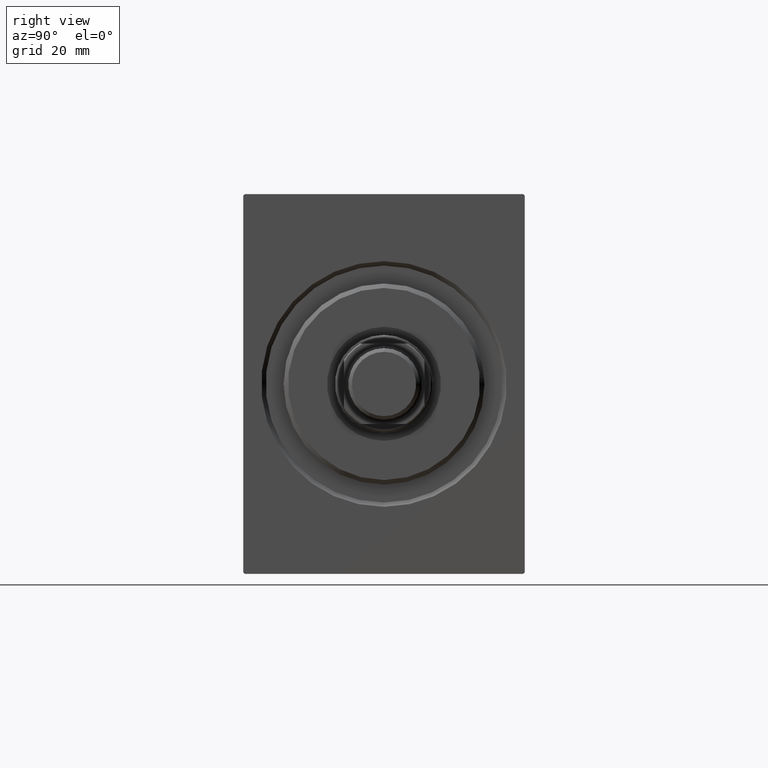
[diagram: clean part render]
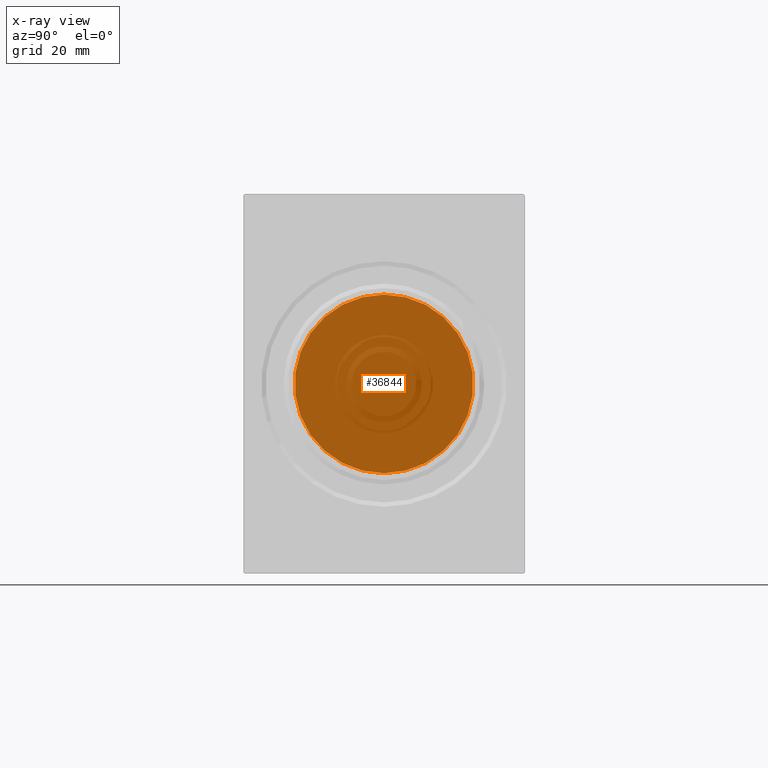
[diagram: x-ray — body ghosted, one internal face saturated and labeled with its STEP entity id]
A machine part, right view, then the same camera in x-ray: the body is ghosted and one INTERNAL B-rep face — a face not visible from any outside direction — is saturated and labeled: STEP entity #36844.
In plain terms, the highlighted planar face has unit normal (1, 0, -0).
Its self-contained STEP definition (entity closure, byte-faithful):
#1871 = AXIS2_PLACEMENT_3D ( 'NONE', #20228, #37117, #7067 ) ;
#4005 = DIRECTION ( 'NONE',  ( -1.000000000000000000, 0.000000000000000000, 0.000000000000000000 ) ) ;
#4095 = EDGE_LOOP ( 'NONE', ( #17877, #34272 ) ) ;
#6857 = PLANE ( 'NONE',  #1871 ) ;
#7067 = DIRECTION ( 'NONE',  ( 0.000000000000000000, 0.000000000000000000, 1.000000000000000000 ) ) ;
#7351 = CARTESIAN_POINT ( 'NONE',  ( 76.00000000000000000, 2.449293598294706513E-15, -20.00000000000000000 ) ) ;
#8912 = AXIS2_PLACEMENT_3D ( 'NONE', #41241, #13681, #40433 ) ;
#9609 = CIRCLE ( 'NONE', #39031, 20.00000000000000000 ) ;
#12792 = FACE_OUTER_BOUND ( 'NONE', #4095, .T. ) ;
#13681 = DIRECTION ( 'NONE',  ( -1.000000000000000000, 0.000000000000000000, 0.000000000000000000 ) ) ;
#14228 = EDGE_CURVE ( 'NONE', #19422, #33412, #9609, .T. ) ;
#15224 = EDGE_CURVE ( 'NONE', #33412, #19422, #28504, .T. ) ;
#17167 = DIRECTION ( 'NONE',  ( 0.000000000000000000, 0.000000000000000000, 1.000000000000000000 ) ) ;
#17877 = ORIENTED_EDGE ( 'NONE', *, *, #14228, .T. ) ;
#19422 = VERTEX_POINT ( 'NONE', #40883 ) ;
#20228 = CARTESIAN_POINT ( 'NONE',  ( 76.00000000000000000, 0.000000000000000000, 0.000000000000000000 ) ) ;
#27681 = CARTESIAN_POINT ( 'NONE',  ( 76.00000000000000000, 0.000000000000000000, 0.000000000000000000 ) ) ;
#28504 = CIRCLE ( 'NONE', #8912, 20.00000000000000000 ) ;
#33412 = VERTEX_POINT ( 'NONE', #7351 ) ;
#34272 = ORIENTED_EDGE ( 'NONE', *, *, #15224, .T. ) ;
#36844 = ADVANCED_FACE ( 'NONE', ( #12792 ), #6857, .T. ) ;
#37117 = DIRECTION ( 'NONE',  ( -1.000000000000000000, 0.000000000000000000, 0.000000000000000000 ) ) ;
#39031 = AXIS2_PLACEMENT_3D ( 'NONE', #27681, #4005, #17167 ) ;
#40433 = DIRECTION ( 'NONE',  ( 0.000000000000000000, 0.000000000000000000, 1.000000000000000000 ) ) ;
#40883 = CARTESIAN_POINT ( 'NONE',  ( 76.00000000000000000, 0.000000000000000000, 20.00000000000000000 ) ) ;
#41241 = CARTESIAN_POINT ( 'NONE',  ( 76.00000000000000000, 0.000000000000000000, 0.000000000000000000 ) ) ;